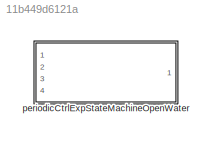
MODEL slx_11b449d6121a
KIND library
CONFIG AbsTol = auto
CONFIG EnableMultiTasking = off
CONFIG FixedStep = auto
CONFIG MaxStep = auto
CONFIG MinStep = auto
CONFIG RelTol = 1e-3
CONFIG SampleTimeConstraint = Unconstrained
CONFIG Solver = VariableStepAuto
CONFIG SolverName = VariableStepAuto
CONFIG StartTime = 0.0
CONFIG StopTime = 10.0
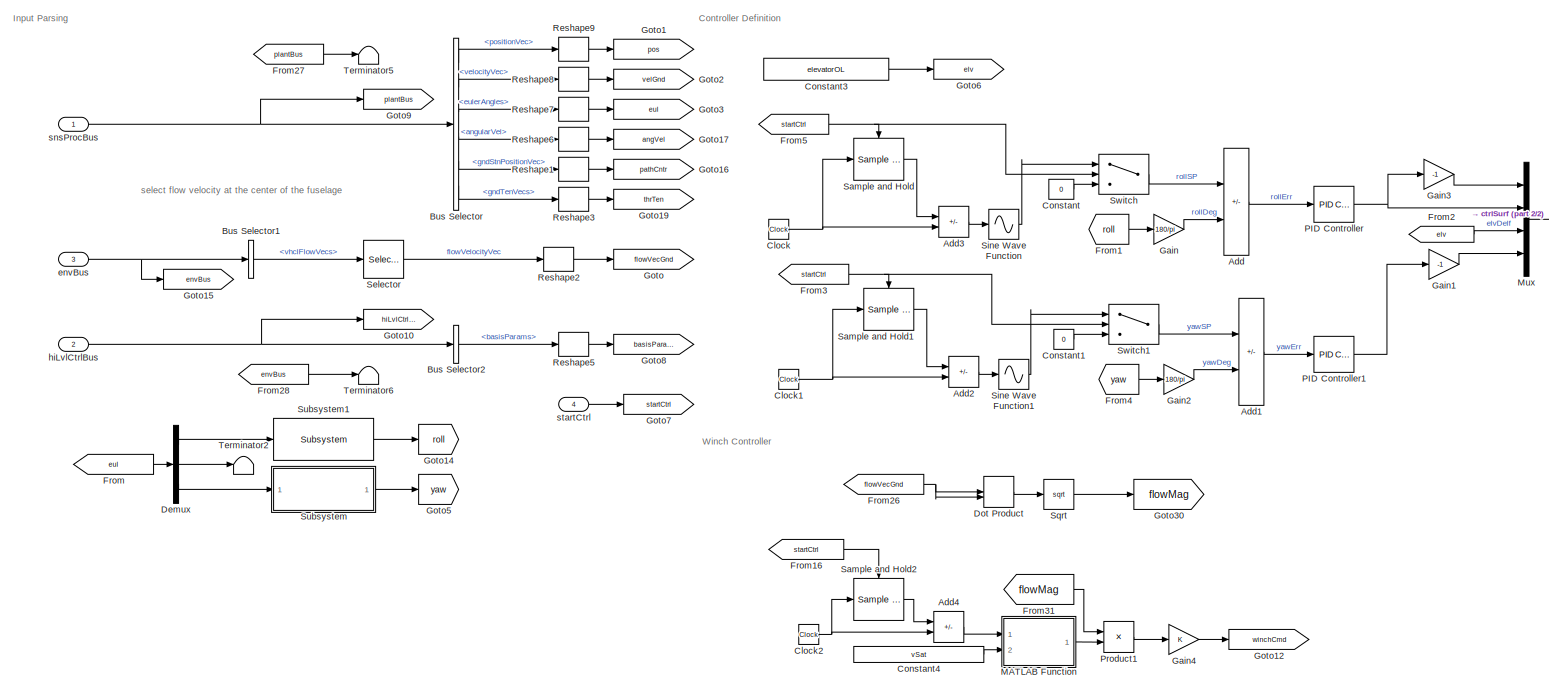
[diagram: periodicCtrlExpStateMachineOpenWater - part 1/2, center side, full height]
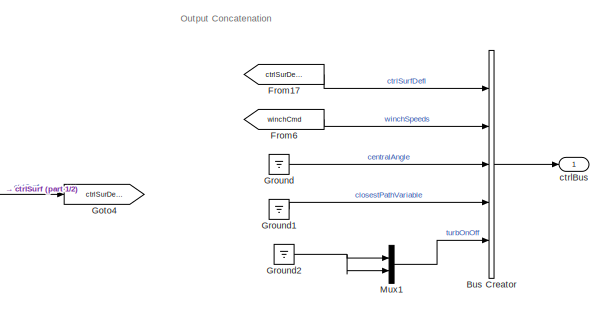
[diagram: periodicCtrlExpStateMachineOpenWater - part 2/2, top right region]
BLOCK [SubSystem] periodicCtrlExpStateMachineOpenWater
  InitFcn = initializeBussesFromBlock(gcb)
  LoadFcn = initializeBussesFromBlock(gcb)
  Ports = [4, 1]
  RequestExecContextInheritance = off
BLOCK [Sum] periodicCtrlExpStateMachineOpenWater/Add
  IconShape = rectangular
  Inputs = +-
  Ports = [2, 1]
BLOCK [Sum] periodicCtrlExpStateMachineOpenWater/Add1
  IconShape = rectangular
  Inputs = +-
  Ports = [2, 1]
BLOCK [Sum] periodicCtrlExpStateMachineOpenWater/Add2
  IconShape = rectangular
  Inputs = -+
  Ports = [2, 1]
BLOCK [Sum] periodicCtrlExpStateMachineOpenWater/Add3
  IconShape = rectangular
  Inputs = -+
  Ports = [2, 1]
BLOCK [Sum] periodicCtrlExpStateMachineOpenWater/Add4
  IconShape = rectangular
  Inputs = -+
  Ports = [2, 1]
BLOCK [BusCreator] periodicCtrlExpStateMachineOpenWater/Bus Creator
  DisplayOption = bar
  InheritFromInputs = off
  Inputs = 5
  OutDataTypeStr = Bus: fltCtrlBus
  Ports = [5, 1]
BLOCK [BusSelector] periodicCtrlExpStateMachineOpenWater/Bus Selector
  OutputSignals = positionVec,velocityVec,eulerAngles,angularVel,gndStnPositionVec,gndTenVecs
  Ports = [1, 6]
BLOCK [BusSelector] periodicCtrlExpStateMachineOpenWater/Bus Selector1
  OutputSignals = vhclFlowVecs
  Ports = [1, 1]
BLOCK [BusSelector] periodicCtrlExpStateMachineOpenWater/Bus Selector2
  OutputSignals = basisParams
  Ports = [1, 1]
BLOCK [Clock] periodicCtrlExpStateMachineOpenWater/Clock
BLOCK [Clock] periodicCtrlExpStateMachineOpenWater/Clock1
BLOCK [Clock] periodicCtrlExpStateMachineOpenWater/Clock2
BLOCK [Constant] periodicCtrlExpStateMachineOpenWater/Constant
  Value = 0
BLOCK [Constant] periodicCtrlExpStateMachineOpenWater/Constant1
  Value = 0
BLOCK [Constant] periodicCtrlExpStateMachineOpenWater/Constant3
  Value = elevatorOL
BLOCK [Constant] periodicCtrlExpStateMachineOpenWater/Constant4
  Value = vSat
BLOCK [Demux] periodicCtrlExpStateMachineOpenWater/Demux
  Outputs = 3
  Ports = [1, 3]
BLOCK [DotProduct] periodicCtrlExpStateMachineOpenWater/Dot Product
  OutDataTypeStr = Inherit: Inherit via internal rule
BLOCK [From] periodicCtrlExpStateMachineOpenWater/From
  GotoTag = eul
BLOCK [From] periodicCtrlExpStateMachineOpenWater/From1
  GotoTag = roll
BLOCK [From] periodicCtrlExpStateMachineOpenWater/From16
  GotoTag = startCtrl
BLOCK [From] periodicCtrlExpStateMachineOpenWater/From17
  GotoTag = ctrlSurDefl
BLOCK [From] periodicCtrlExpStateMachineOpenWater/From2
  GotoTag = elv
BLOCK [From] periodicCtrlExpStateMachineOpenWater/From26
  GotoTag = flowVecGnd
BLOCK [From] periodicCtrlExpStateMachineOpenWater/From27
  GotoTag = plantBus
BLOCK [From] periodicCtrlExpStateMachineOpenWater/From28
  GotoTag = envBus
BLOCK [From] periodicCtrlExpStateMachineOpenWater/From3
  GotoTag = startCtrl
BLOCK [From] periodicCtrlExpStateMachineOpenWater/From31
  GotoTag = flowMag
BLOCK [From] periodicCtrlExpStateMachineOpenWater/From4
  GotoTag = yaw
BLOCK [From] periodicCtrlExpStateMachineOpenWater/From5
  GotoTag = startCtrl
BLOCK [From] periodicCtrlExpStateMachineOpenWater/From6
  GotoTag = winchCmd
BLOCK [Gain] periodicCtrlExpStateMachineOpenWater/Gain
  Gain = 180/pi
BLOCK [Gain] periodicCtrlExpStateMachineOpenWater/Gain1
  Gain = -1
BLOCK [Gain] periodicCtrlExpStateMachineOpenWater/Gain2
  Gain = 180/pi
BLOCK [Gain] periodicCtrlExpStateMachineOpenWater/Gain3
  Gain = -1
BLOCK [Gain] periodicCtrlExpStateMachineOpenWater/Gain4
BLOCK [Goto] periodicCtrlExpStateMachineOpenWater/Goto
  GotoTag = flowVecGnd
BLOCK [Goto] periodicCtrlExpStateMachineOpenWater/Goto1
  Commented = on
  GotoTag = pos
BLOCK [Goto] periodicCtrlExpStateMachineOpenWater/Goto10
  Commented = on
  GotoTag = hiLvlCtrlBus
BLOCK [Goto] periodicCtrlExpStateMachineOpenWater/Goto12
  GotoTag = winchCmd
BLOCK [Goto] periodicCtrlExpStateMachineOpenWater/Goto14
  GotoTag = roll
BLOCK [Goto] periodicCtrlExpStateMachineOpenWater/Goto15
  GotoTag = envBus
BLOCK [Goto] periodicCtrlExpStateMachineOpenWater/Goto16
  Commented = on
  GotoTag = pathCntr
BLOCK [Goto] periodicCtrlExpStateMachineOpenWater/Goto17
  Commented = on
  GotoTag = angVel
BLOCK [Goto] periodicCtrlExpStateMachineOpenWater/Goto19
  Commented = on
  GotoTag = thrTen
BLOCK [Goto] periodicCtrlExpStateMachineOpenWater/Goto2
  Commented = on
  GotoTag = velGnd
BLOCK [Goto] periodicCtrlExpStateMachineOpenWater/Goto3
  GotoTag = eul
BLOCK [Goto] periodicCtrlExpStateMachineOpenWater/Goto30
  GotoTag = flowMag
BLOCK [Goto] periodicCtrlExpStateMachineOpenWater/Goto4
  GotoTag = ctrlSurDefl
BLOCK [Goto] periodicCtrlExpStateMachineOpenWater/Goto5
  GotoTag = yaw
BLOCK [Goto] periodicCtrlExpStateMachineOpenWater/Goto6
  GotoTag = elv
BLOCK [Goto] periodicCtrlExpStateMachineOpenWater/Goto7
  GotoTag = startCtrl
BLOCK [Goto] periodicCtrlExpStateMachineOpenWater/Goto8
  Commented = on
  GotoTag = basisParams
BLOCK [Goto] periodicCtrlExpStateMachineOpenWater/Goto9
  GotoTag = plantBus
BLOCK [Ground] periodicCtrlExpStateMachineOpenWater/Ground
BLOCK [Ground] periodicCtrlExpStateMachineOpenWater/Ground1
BLOCK [Ground] periodicCtrlExpStateMachineOpenWater/Ground2
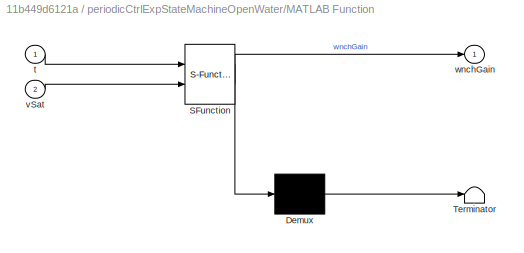
BLOCK [SubSystem] periodicCtrlExpStateMachineOpenWater/MATLAB Function
  ErrorFcn = Stateflow.Translate.translate
  PermitHierarchicalResolution = ExplicitOnly
  Ports = [2, 1]
  RequestExecContextInheritance = off
  SFBlockType = MATLAB Function
  TreatAsAtomicUnit = on
BLOCK [Demux] periodicCtrlExpStateMachineOpenWater/MATLAB Function/ Demux 
  Outputs = 1
  Ports = [1, 1]
BLOCK [S-Function] periodicCtrlExpStateMachineOpenWater/MATLAB Function/ SFunction 
  EnableBusSupport = off
  FunctionName = sf_sfun
  PortCounts = [2 2]
  Ports = [2, 2]
  SFcnIsStateOwnerBlock = off
  SFunctionDeploymentMode = off
  Tag = Stateflow S-Function 2
BLOCK [Terminator] periodicCtrlExpStateMachineOpenWater/MATLAB Function/ Terminator 
BLOCK [Inport] periodicCtrlExpStateMachineOpenWater/MATLAB Function/t
BLOCK [Inport] periodicCtrlExpStateMachineOpenWater/MATLAB Function/vSat
  Port = 2
BLOCK [Outport] periodicCtrlExpStateMachineOpenWater/MATLAB Function/wnchGain
BLOCK [Mux] periodicCtrlExpStateMachineOpenWater/Mux
  DisplayOption = bar
  Ports = [4, 1]
BLOCK [Mux] periodicCtrlExpStateMachineOpenWater/Mux1
  DisplayOption = bar
  Inputs = 2
  Ports = [2, 1]
BLOCK [Reference] periodicCtrlExpStateMachineOpenWater/PID Controller  REF=simulink/Continuous/PID Controller
  Ports = [1, 1]
  SourceBlock = simulink/Continuous/PID Controller
  SourceProductBaseCode = SL
  SourceType = PID 1dof
BLOCK [Reference] periodicCtrlExpStateMachineOpenWater/PID Controller1  REF=simulink/Continuous/PID Controller
  Ports = [1, 1]
  SourceBlock = simulink/Continuous/PID Controller
  SourceProductBaseCode = SL
  SourceType = PID 1dof
BLOCK [Product] periodicCtrlExpStateMachineOpenWater/Product1
  Ports = [2, 1]
BLOCK [Reshape] periodicCtrlExpStateMachineOpenWater/Reshape1
  OutputDimensionality = Column vector (2-D)
  Ports = [1, 1]
BLOCK [Reshape] periodicCtrlExpStateMachineOpenWater/Reshape2
  OutputDimensionality = Column vector (2-D)
  Ports = [1, 1]
BLOCK [Reshape] periodicCtrlExpStateMachineOpenWater/Reshape3
  OutputDimensionality = Column vector (2-D)
  Ports = [1, 1]
BLOCK [Reshape] periodicCtrlExpStateMachineOpenWater/Reshape5
  OutputDimensionality = Column vector (2-D)
  Ports = [1, 1]
BLOCK [Reshape] periodicCtrlExpStateMachineOpenWater/Reshape6
  OutputDimensionality = Column vector (2-D)
  Ports = [1, 1]
BLOCK [Reshape] periodicCtrlExpStateMachineOpenWater/Reshape7
  OutputDimensionality = Column vector (2-D)
  Ports = [1, 1]
BLOCK [Reshape] periodicCtrlExpStateMachineOpenWater/Reshape8
  OutputDimensionality = Column vector (2-D)
  Ports = [1, 1]
BLOCK [Reshape] periodicCtrlExpStateMachineOpenWater/Reshape9
  OutputDimensionality = Column vector (2-D)
  Ports = [1, 1]
BLOCK [Reference] periodicCtrlExpStateMachineOpenWater/Sample and Hold  REF=dspsigops/Sample
and Hold
  Ports = [1, 1, 0, 1]
  SourceBlock = dspsigops/Sample\nand Hold
  SourceProductBaseCode = DS
  SourceType = Sample and Hold
BLOCK [Reference] periodicCtrlExpStateMachineOpenWater/Sample and Hold1  REF=dspsigops/Sample
and Hold
  Ports = [1, 1, 0, 1]
  SourceBlock = dspsigops/Sample\nand Hold
  SourceProductBaseCode = DS
  SourceType = Sample and Hold
BLOCK [Reference] periodicCtrlExpStateMachineOpenWater/Sample and Hold2  REF=dspsigops/Sample
and Hold
  Ports = [1, 1, 0, 1]
  SourceBlock = dspsigops/Sample\nand Hold
  SourceProductBaseCode = DS
  SourceType = Sample and Hold
BLOCK [Selector] periodicCtrlExpStateMachineOpenWater/Selector
  IndexOptions = Select all,Index vector (dialog)
  Indices = [1 3],5
  InputPortWidth = 3
  NumberOfDimensions = 2
  OutputSizes = 1,1
  Ports = [1, 1]
BLOCK [Sin] periodicCtrlExpStateMachineOpenWater/Sine Wave Function
  Amplitude = rollAmp
  Frequency = 2*pi/period
  Phase = rollPhase
  Ports = [1, 1]
  SampleTime = 0
  TimeSource = Use external signal
BLOCK [Sin] periodicCtrlExpStateMachineOpenWater/Sine Wave Function1
  Amplitude = yawAmp
  Frequency = 2*pi/period
  Phase = yawPhase
  Ports = [1, 1]
  SampleTime = 0
  TimeSource = Use external signal
BLOCK [Sqrt] periodicCtrlExpStateMachineOpenWater/Sqrt
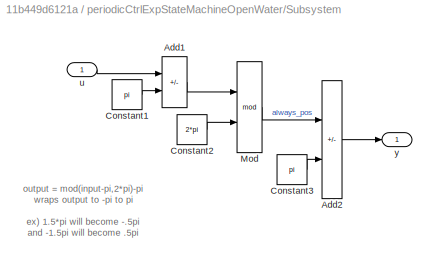
BLOCK [SubSystem] periodicCtrlExpStateMachineOpenWater/Subsystem
  Ports = [1, 1]
  RequestExecContextInheritance = off
BLOCK [Sum] periodicCtrlExpStateMachineOpenWater/Subsystem/Add1
  IconShape = rectangular
  Inputs = +-
  Ports = [2, 1]
BLOCK [Sum] periodicCtrlExpStateMachineOpenWater/Subsystem/Add2
  IconShape = rectangular
  Inputs = +-
  Ports = [2, 1]
BLOCK [Constant] periodicCtrlExpStateMachineOpenWater/Subsystem/Constant1
  Value = pi
BLOCK [Constant] periodicCtrlExpStateMachineOpenWater/Subsystem/Constant2
  Value = 2*pi
BLOCK [Constant] periodicCtrlExpStateMachineOpenWater/Subsystem/Constant3
  Value = pi
BLOCK [Math] periodicCtrlExpStateMachineOpenWater/Subsystem/Mod
  Operator = mod
  Ports = [2, 1]
  SignedPower = on
BLOCK [Inport] periodicCtrlExpStateMachineOpenWater/Subsystem/u
BLOCK [Outport] periodicCtrlExpStateMachineOpenWater/Subsystem/y
  VectorParamsAs1DForOutWhenUnconnected = off
BLOCK [Reference] periodicCtrlExpStateMachineOpenWater/Subsystem1  REF=$bdroot/periodicCtrlExpStateMachine/Subsystem
  Ports = [1, 1]
  SourceBlock = $bdroot/periodicCtrlExpStateMachine/Subsystem
  SourceType = SubSystem
BLOCK [Switch] periodicCtrlExpStateMachineOpenWater/Switch
  Criteria = u2 > Threshold
  InputSameDT = off
  SaturateOnIntegerOverflow = off
BLOCK [Switch] periodicCtrlExpStateMachineOpenWater/Switch1
  Criteria = u2 > Threshold
  InputSameDT = off
  SaturateOnIntegerOverflow = off
BLOCK [Terminator] periodicCtrlExpStateMachineOpenWater/Terminator2
BLOCK [Terminator] periodicCtrlExpStateMachineOpenWater/Terminator5
BLOCK [Terminator] periodicCtrlExpStateMachineOpenWater/Terminator6
BLOCK [Outport] periodicCtrlExpStateMachineOpenWater/ctrlBus
  OutDataTypeStr = Bus: fltCtrlBus
  VectorParamsAs1DForOutWhenUnconnected = off
BLOCK [Inport] periodicCtrlExpStateMachineOpenWater/envBus
  OutDataTypeStr = Bus: envBus
  Port = 3
BLOCK [Inport] periodicCtrlExpStateMachineOpenWater/hiLvlCtrlBus
  OutDataTypeStr = Bus: hiLvlCtrlBus
  Port = 2
BLOCK [Inport] periodicCtrlExpStateMachineOpenWater/snsProcBus
  OutDataTypeStr = Bus: sensorsProcessingBus
BLOCK [Inport] periodicCtrlExpStateMachineOpenWater/startCtrl
  Port = 4
ANNOTATION periodicCtrlExpStateMachineOpenWater: Controller Definition
ANNOTATION periodicCtrlExpStateMachineOpenWater: Input Parsing
ANNOTATION periodicCtrlExpStateMachineOpenWater: Output Concatenation
ANNOTATION periodicCtrlExpStateMachineOpenWater: Winch Controller
ANNOTATION periodicCtrlExpStateMachineOpenWater: select flow velocity at the center of the fuselage
ANNOTATION periodicCtrlExpStateMachineOpenWater/Subsystem: output = mod(input-pi,2*pi)-pi wraps output to -pi to pi ex) 1.5*pi will become -.5pi and -1.5pi will become .5pi to visualize, plot the fuction above
LINE periodicCtrlExpStateMachineOpenWater/Add1:1 -> periodicCtrlExpStateMachineOpenWater/PID Controller1:1
LINE periodicCtrlExpStateMachineOpenWater/Add2:1 -> periodicCtrlExpStateMachineOpenWater/Sine Wave Function1:1
LINE periodicCtrlExpStateMachineOpenWater/Add3:1 -> periodicCtrlExpStateMachineOpenWater/Sine Wave Function:1
LINE periodicCtrlExpStateMachineOpenWater/Add4:1 -> periodicCtrlExpStateMachineOpenWater/MATLAB Function:1
LINE periodicCtrlExpStateMachineOpenWater/Add:1 -> periodicCtrlExpStateMachineOpenWater/PID Controller:1
LINE periodicCtrlExpStateMachineOpenWater/Bus Creator:1 -> periodicCtrlExpStateMachineOpenWater/ctrlBus:1
LINE periodicCtrlExpStateMachineOpenWater/Bus Selector1:1 -> periodicCtrlExpStateMachineOpenWater/Selector:1
LINE periodicCtrlExpStateMachineOpenWater/Bus Selector2:1 -> periodicCtrlExpStateMachineOpenWater/Reshape5:1
LINE periodicCtrlExpStateMachineOpenWater/Bus Selector:1 -> periodicCtrlExpStateMachineOpenWater/Reshape9:1
LINE periodicCtrlExpStateMachineOpenWater/Bus Selector:2 -> periodicCtrlExpStateMachineOpenWater/Reshape8:1
LINE periodicCtrlExpStateMachineOpenWater/Bus Selector:3 -> periodicCtrlExpStateMachineOpenWater/Reshape7:1
LINE periodicCtrlExpStateMachineOpenWater/Bus Selector:4 -> periodicCtrlExpStateMachineOpenWater/Reshape6:1
LINE periodicCtrlExpStateMachineOpenWater/Bus Selector:5 -> periodicCtrlExpStateMachineOpenWater/Reshape1:1
LINE periodicCtrlExpStateMachineOpenWater/Bus Selector:6 -> periodicCtrlExpStateMachineOpenWater/Reshape3:1
NET periodicCtrlExpStateMachineOpenWater/Clock1:1 -> periodicCtrlExpStateMachineOpenWater/Add2:2, periodicCtrlExpStateMachineOpenWater/Sample and Hold1:1
NET periodicCtrlExpStateMachineOpenWater/Clock2:1 -> periodicCtrlExpStateMachineOpenWater/Add4:2, periodicCtrlExpStateMachineOpenWater/Sample and Hold2:1
NET periodicCtrlExpStateMachineOpenWater/Clock:1 -> periodicCtrlExpStateMachineOpenWater/Add3:2, periodicCtrlExpStateMachineOpenWater/Sample and Hold:1
LINE periodicCtrlExpStateMachineOpenWater/Constant1:1 -> periodicCtrlExpStateMachineOpenWater/Switch1:3
LINE periodicCtrlExpStateMachineOpenWater/Constant3:1 -> periodicCtrlExpStateMachineOpenWater/Goto6:1
LINE periodicCtrlExpStateMachineOpenWater/Constant4:1 -> periodicCtrlExpStateMachineOpenWater/MATLAB Function:2
LINE periodicCtrlExpStateMachineOpenWater/Constant:1 -> periodicCtrlExpStateMachineOpenWater/Switch:3
LINE periodicCtrlExpStateMachineOpenWater/Demux:1 -> periodicCtrlExpStateMachineOpenWater/Subsystem1:1
LINE periodicCtrlExpStateMachineOpenWater/Demux:2 -> periodicCtrlExpStateMachineOpenWater/Terminator2:1
LINE periodicCtrlExpStateMachineOpenWater/Demux:3 -> periodicCtrlExpStateMachineOpenWater/Subsystem:1
LINE periodicCtrlExpStateMachineOpenWater/Dot Product:1 -> periodicCtrlExpStateMachineOpenWater/Sqrt:1
LINE periodicCtrlExpStateMachineOpenWater/From16:1 -> periodicCtrlExpStateMachineOpenWater/Sample and Hold2:trigger
LINE periodicCtrlExpStateMachineOpenWater/From17:1 -> periodicCtrlExpStateMachineOpenWater/Bus Creator:1
LINE periodicCtrlExpStateMachineOpenWater/From1:1 -> periodicCtrlExpStateMachineOpenWater/Gain:1
NET periodicCtrlExpStateMachineOpenWater/From26:1 -> periodicCtrlExpStateMachineOpenWater/Dot Product:1, periodicCtrlExpStateMachineOpenWater/Dot Product:2
LINE periodicCtrlExpStateMachineOpenWater/From27:1 -> periodicCtrlExpStateMachineOpenWater/Terminator5:1
LINE periodicCtrlExpStateMachineOpenWater/From28:1 -> periodicCtrlExpStateMachineOpenWater/Terminator6:1
LINE periodicCtrlExpStateMachineOpenWater/From2:1 -> periodicCtrlExpStateMachineOpenWater/Mux:3
LINE periodicCtrlExpStateMachineOpenWater/From31:1 -> periodicCtrlExpStateMachineOpenWater/Product1:1
NET periodicCtrlExpStateMachineOpenWater/From3:1 -> periodicCtrlExpStateMachineOpenWater/Sample and Hold1:trigger, periodicCtrlExpStateMachineOpenWater/Switch1:2
LINE periodicCtrlExpStateMachineOpenWater/From4:1 -> periodicCtrlExpStateMachineOpenWater/Gain2:1
NET periodicCtrlExpStateMachineOpenWater/From5:1 -> periodicCtrlExpStateMachineOpenWater/Sample and Hold:trigger, periodicCtrlExpStateMachineOpenWater/Switch:2
LINE periodicCtrlExpStateMachineOpenWater/From6:1 -> periodicCtrlExpStateMachineOpenWater/Bus Creator:2
LINE periodicCtrlExpStateMachineOpenWater/From:1 -> periodicCtrlExpStateMachineOpenWater/Demux:1
LINE periodicCtrlExpStateMachineOpenWater/Gain1:1 -> periodicCtrlExpStateMachineOpenWater/Mux:4
LINE periodicCtrlExpStateMachineOpenWater/Gain2:1 -> periodicCtrlExpStateMachineOpenWater/Add1:2
LINE periodicCtrlExpStateMachineOpenWater/Gain3:1 -> periodicCtrlExpStateMachineOpenWater/Mux:1
LINE periodicCtrlExpStateMachineOpenWater/Gain4:1 -> periodicCtrlExpStateMachineOpenWater/Goto12:1
LINE periodicCtrlExpStateMachineOpenWater/Gain:1 -> periodicCtrlExpStateMachineOpenWater/Add:2
LINE periodicCtrlExpStateMachineOpenWater/Ground1:1 -> periodicCtrlExpStateMachineOpenWater/Bus Creator:4
NET periodicCtrlExpStateMachineOpenWater/Ground2:1 -> periodicCtrlExpStateMachineOpenWater/Mux1:1, periodicCtrlExpStateMachineOpenWater/Mux1:2
LINE periodicCtrlExpStateMachineOpenWater/Ground:1 -> periodicCtrlExpStateMachineOpenWater/Bus Creator:3
LINE periodicCtrlExpStateMachineOpenWater/MATLAB Function:1 -> periodicCtrlExpStateMachineOpenWater/Product1:2
LINE periodicCtrlExpStateMachineOpenWater/Mux1:1 -> periodicCtrlExpStateMachineOpenWater/Bus Creator:5
LINE periodicCtrlExpStateMachineOpenWater/Mux:1 -> periodicCtrlExpStateMachineOpenWater/Goto4:1
LINE periodicCtrlExpStateMachineOpenWater/PID Controller1:1 -> periodicCtrlExpStateMachineOpenWater/Gain1:1
NET periodicCtrlExpStateMachineOpenWater/PID Controller:1 -> periodicCtrlExpStateMachineOpenWater/Gain3:1, periodicCtrlExpStateMachineOpenWater/Mux:2
LINE periodicCtrlExpStateMachineOpenWater/Product1:1 -> periodicCtrlExpStateMachineOpenWater/Gain4:1
LINE periodicCtrlExpStateMachineOpenWater/Reshape1:1 -> periodicCtrlExpStateMachineOpenWater/Goto16:1
LINE periodicCtrlExpStateMachineOpenWater/Reshape2:1 -> periodicCtrlExpStateMachineOpenWater/Goto:1
LINE periodicCtrlExpStateMachineOpenWater/Reshape3:1 -> periodicCtrlExpStateMachineOpenWater/Goto19:1
LINE periodicCtrlExpStateMachineOpenWater/Reshape5:1 -> periodicCtrlExpStateMachineOpenWater/Goto8:1
LINE periodicCtrlExpStateMachineOpenWater/Reshape6:1 -> periodicCtrlExpStateMachineOpenWater/Goto17:1
LINE periodicCtrlExpStateMachineOpenWater/Reshape7:1 -> periodicCtrlExpStateMachineOpenWater/Goto3:1
LINE periodicCtrlExpStateMachineOpenWater/Reshape8:1 -> periodicCtrlExpStateMachineOpenWater/Goto2:1
LINE periodicCtrlExpStateMachineOpenWater/Reshape9:1 -> periodicCtrlExpStateMachineOpenWater/Goto1:1
LINE periodicCtrlExpStateMachineOpenWater/Sample and Hold1:1 -> periodicCtrlExpStateMachineOpenWater/Add2:1
LINE periodicCtrlExpStateMachineOpenWater/Sample and Hold2:1 -> periodicCtrlExpStateMachineOpenWater/Add4:1
LINE periodicCtrlExpStateMachineOpenWater/Sample and Hold:1 -> periodicCtrlExpStateMachineOpenWater/Add3:1
LINE periodicCtrlExpStateMachineOpenWater/Selector:1 -> periodicCtrlExpStateMachineOpenWater/Reshape2:1
LINE periodicCtrlExpStateMachineOpenWater/Sine Wave Function1:1 -> periodicCtrlExpStateMachineOpenWater/Switch1:1
LINE periodicCtrlExpStateMachineOpenWater/Sine Wave Function:1 -> periodicCtrlExpStateMachineOpenWater/Switch:1
LINE periodicCtrlExpStateMachineOpenWater/Sqrt:1 -> periodicCtrlExpStateMachineOpenWater/Goto30:1
LINE periodicCtrlExpStateMachineOpenWater/Subsystem/Add1:1 -> periodicCtrlExpStateMachineOpenWater/Subsystem/Mod:1
LINE periodicCtrlExpStateMachineOpenWater/Subsystem/Add2:1 -> periodicCtrlExpStateMachineOpenWater/Subsystem/y:1
LINE periodicCtrlExpStateMachineOpenWater/Subsystem/Constant1:1 -> periodicCtrlExpStateMachineOpenWater/Subsystem/Add1:2
LINE periodicCtrlExpStateMachineOpenWater/Subsystem/Constant2:1 -> periodicCtrlExpStateMachineOpenWater/Subsystem/Mod:2
LINE periodicCtrlExpStateMachineOpenWater/Subsystem/Constant3:1 -> periodicCtrlExpStateMachineOpenWater/Subsystem/Add2:2
LINE periodicCtrlExpStateMachineOpenWater/Subsystem/Mod:1 -> periodicCtrlExpStateMachineOpenWater/Subsystem/Add2:1
LINE periodicCtrlExpStateMachineOpenWater/Subsystem/u:1 -> periodicCtrlExpStateMachineOpenWater/Subsystem/Add1:1
LINE periodicCtrlExpStateMachineOpenWater/Subsystem1:1 -> periodicCtrlExpStateMachineOpenWater/Goto14:1
LINE periodicCtrlExpStateMachineOpenWater/Subsystem:1 -> periodicCtrlExpStateMachineOpenWater/Goto5:1
LINE periodicCtrlExpStateMachineOpenWater/Switch1:1 -> periodicCtrlExpStateMachineOpenWater/Add1:1
LINE periodicCtrlExpStateMachineOpenWater/Switch:1 -> periodicCtrlExpStateMachineOpenWater/Add:1
NET periodicCtrlExpStateMachineOpenWater/envBus:1 -> periodicCtrlExpStateMachineOpenWater/Bus Selector1:1, periodicCtrlExpStateMachineOpenWater/Goto15:1
NET periodicCtrlExpStateMachineOpenWater/hiLvlCtrlBus:1 -> periodicCtrlExpStateMachineOpenWater/Bus Selector2:1, periodicCtrlExpStateMachineOpenWater/Goto10:1
NET periodicCtrlExpStateMachineOpenWater/snsProcBus:1 -> periodicCtrlExpStateMachineOpenWater/Bus Selector:1, periodicCtrlExpStateMachineOpenWater/Goto9:1
LINE periodicCtrlExpStateMachineOpenWater/startCtrl:1 -> periodicCtrlExpStateMachineOpenWater/Goto7:1
note: NET lines group one-source signal fan-out (src -> all destinations, sorted); 1:1 wires keep LINE
CHART periodicCtrlExpStateMachineOpenWater/MATLAB Function states=1 transitions=1
  STATE_LABEL 'eML_blk_kernel()'
  STATE_LABEL 'SCRIPT:\nfunction wnchGain   = fcn(t,vSat)\nwnchGain = 0;\nif t< 15\n    wnchGain = 0;\nelse\n    wnchGain = .001*(t-15)^2;\nend\n\nif wnchGain >= vSat\n    wnchGain = vSat;\nend'
CHART  states=0 transitions=0
